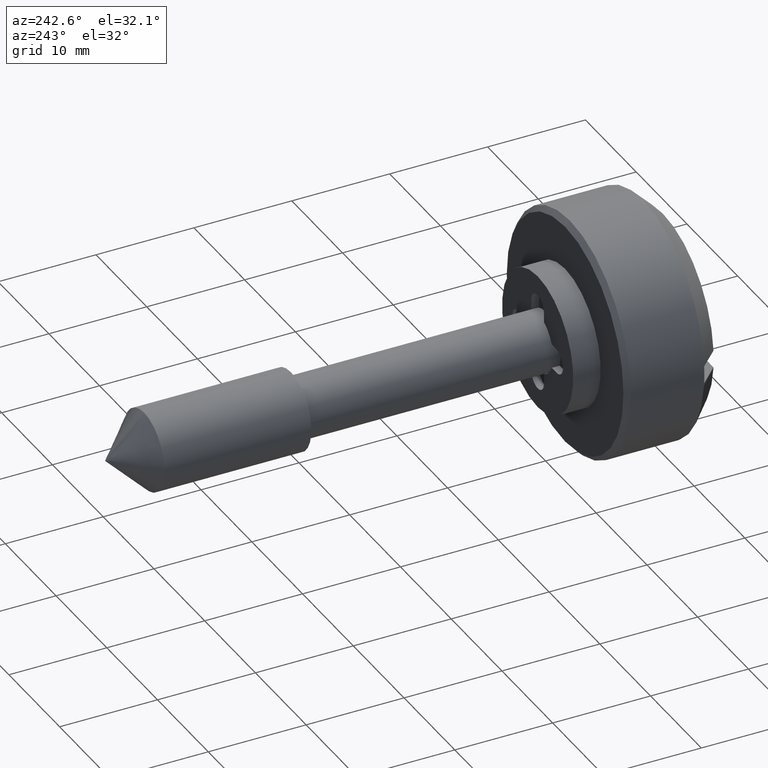
[diagram: clean part render]
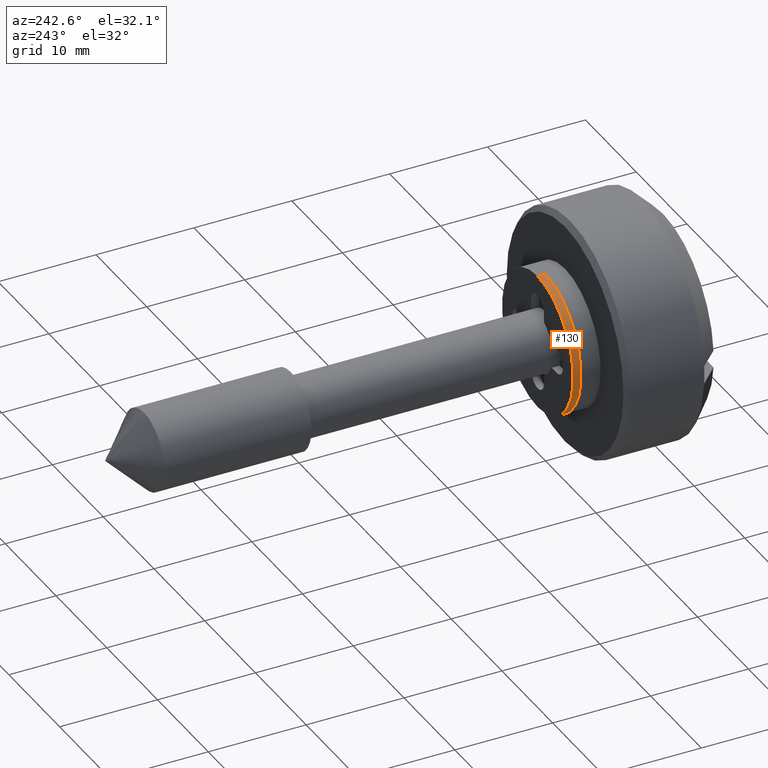
[diagram: same view with one face highlighted and labeled with its STEP entity id]
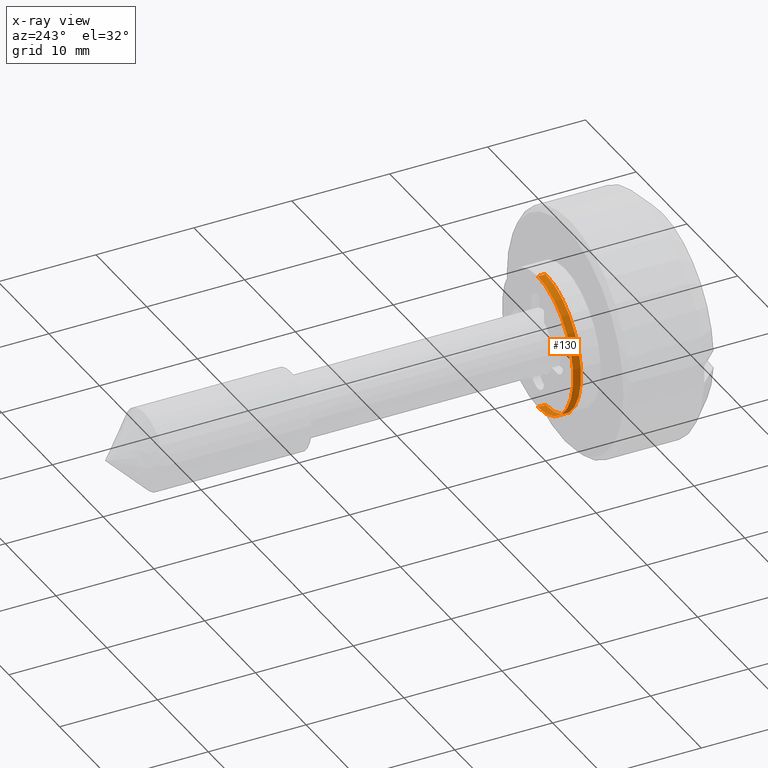
[diagram: x-ray of the same camera — body ghosted, the highlighted face saturated]
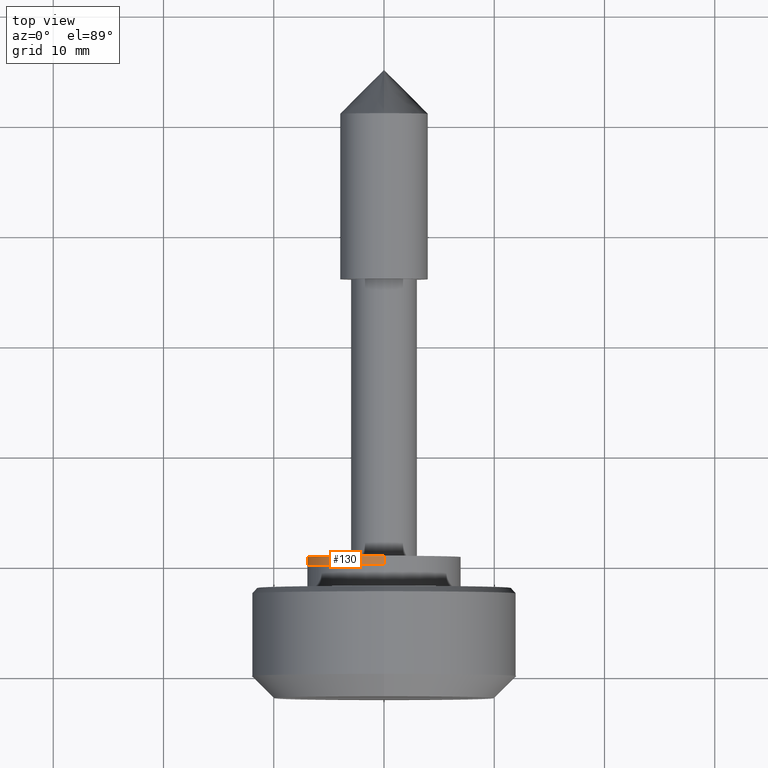
[diagram: same view with one face highlighted and labeled with its STEP entity id]
A machine part, auxiliary view. The second image highlights one B-rep face of the part: STEP entity #130.
The next image is the same camera in x-ray: the body ghosted, the highlighted face saturated — about 0% of this face is hidden behind the body in this view.
A second angle (top view) of the same face is appended — the face is thin or edge-on in the first view.
In plain terms, the highlighted cylindrical surface (partial cylindrical patch) has radius 7 mm, axis along (0, 1, 0).
Its self-contained STEP definition (entity closure, byte-faithful):
#130=ADVANCED_FACE('',(#337),#336,.T.);
#336=CYLINDRICAL_SURFACE('',#674,7.00000000000E+00);
#337=FACE_OUTER_BOUND('',#675,.T.);
#671=CARTESIAN_POINT('',(0.00000000000E+00,1.00000000000E+03,0.00000000000E+00));
#672=DIRECTION('',(-0.00000000000E+00,1.00000000000E+00,-0.00000000000E+00));
#673=DIRECTION('',(1.22464679915E-16,0.00000000000E+00,-1.00000000000E+00));
#674=AXIS2_PLACEMENT_3D('',#671,#672,#673);
#675=EDGE_LOOP('',(#930,#931,#932,#933));
#930=ORIENTED_EDGE('',*,*,#1041,.T.);
#931=ORIENTED_EDGE('',*,*,#1082,.F.);
#932=ORIENTED_EDGE('',*,*,#1063,.F.);
#933=ORIENTED_EDGE('',*,*,#1083,.T.);
#1041=EDGE_CURVE('',#1199,#1198,#1206,.T.);
#1063=EDGE_CURVE('',#1354,#1355,#1356,.T.);
#1082=EDGE_CURVE('',#1355,#1198,#1478,.T.);
#1083=EDGE_CURVE('',#1354,#1199,#1484,.T.);
#1198=VERTEX_POINT('',#1837);
#1199=VERTEX_POINT('',#1838);
#1206=CIRCLE('',#1846,7.00000000000E+00);
#1354=VERTEX_POINT('',#1934);
#1355=VERTEX_POINT('',#1935);
#1356=CIRCLE('',#1939,7.00000000000E+00);
#1478=(BOUNDED_CURVE() B_SPLINE_CURVE(1,(#2007,#2008),.UNSPECIFIED.,.F.,.F.) B_SPLINE_CURVE_WITH_KNOTS((2,2),(8.33332935974E-02,9.16666633252E-01),.UNSPECIFIED.) CURVE() GEOMETRIC_REPRESENTATION_ITEM() RATIONAL_B_SPLINE_CURVE((1.00000000000E+00,1.00000000000E+00)) REPRESENTATION_ITEM('') );
#1484=(BOUNDED_CURVE() B_SPLINE_CURVE(1,(#2009,#2010),.UNSPECIFIED.,.F.,.F.) B_SPLINE_CURVE_WITH_KNOTS((2,2),(8.33333333334E-02,9.16666666667E-01),.UNSPECIFIED.) CURVE() GEOMETRIC_REPRESENTATION_ITEM() RATIONAL_B_SPLINE_CURVE((7.50000000000E-01,7.50000000000E-01)) REPRESENTATION_ITEM('') );
#1837=CARTESIAN_POINT('',(8.88178419700E-16,8.00000000000E-01,-7.00000000000E+00));
#1838=CARTESIAN_POINT('',(0.00000000000E+00,8.00000000000E-01,7.00000000000E+00));
#1843=CARTESIAN_POINT('',(0.00000000000E+00,8.00000000000E-01,0.00000000000E+00));
#1844=DIRECTION('',(-0.00000000000E+00,-1.00000000000E+00,0.00000000000E+00));
#1845=DIRECTION('',(-1.22460635382E-16,0.00000000000E+00,1.00000000000E+00));
#1846=AXIS2_PLACEMENT_3D('',#1843,#1844,#1845);
#1934=CARTESIAN_POINT('',(0.00000000000E+00,0.00000000000E+00,7.00000000000E+00));
#1935=CARTESIAN_POINT('',(8.88178419700E-16,0.00000000000E+00,-7.00000000000E+00));
#1936=CARTESIAN_POINT('',(0.00000000000E+00,0.00000000000E+00,0.00000000000E+00));
#1937=DIRECTION('',(-0.00000000000E+00,-1.00000000000E+00,0.00000000000E+00));
#1938=DIRECTION('',(-1.22460635382E-16,0.00000000000E+00,1.00000000000E+00));
#1939=AXIS2_PLACEMENT_3D('',#1936,#1937,#1938);
#2007=CARTESIAN_POINT('',(8.57252759403E-16,-3.81465210669E-08,-7.00000000000E+00));
#2008=CARTESIAN_POINT('',(8.57252759403E-16,7.99999967922E-01,-7.00000000000E+00));
#2009=CARTESIAN_POINT('',(-5.92118946467E-16,0.00000000000E+00,7.00000000000E+00));
#2010=CARTESIAN_POINT('',(-5.92118946467E-16,8.00000000000E-01,7.00000000000E+00));